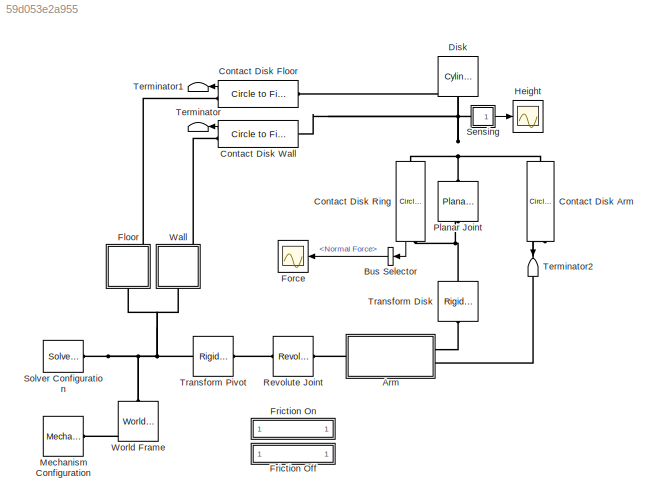
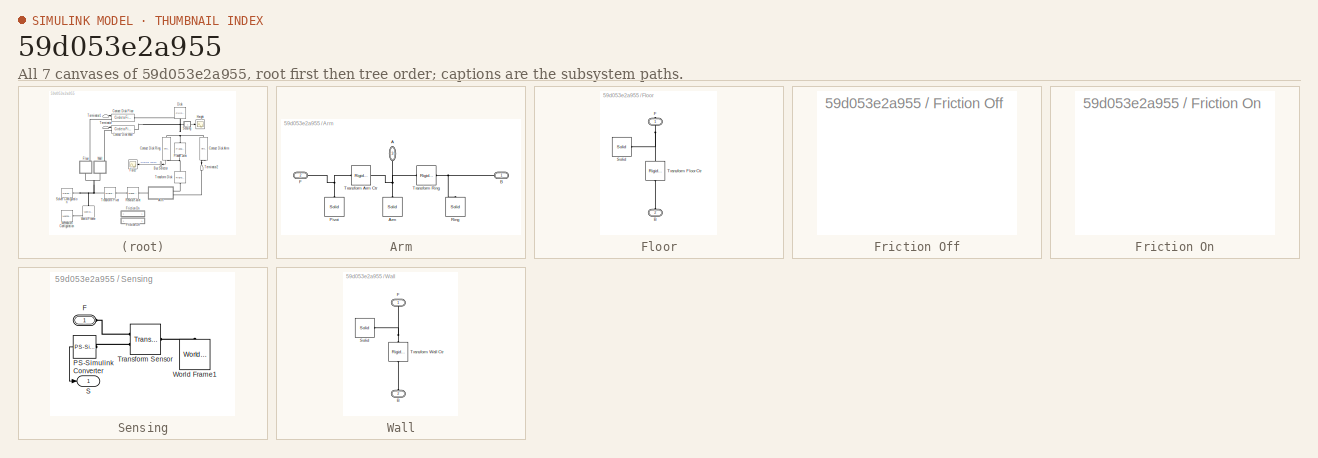
[diagram: thumbnail index - all 7 canvases of the model, root first then tree order]
MODEL slx_59d053e2a955
KIND model
CONFIG PostLoadFcn = warning off Simulink:Engine:UsingDefaultMaxStepSize\n
CONFIG StartFcn = tic;
CONFIG StopFcn = Elapsed_Sim_Time = toc;\ndisp(['Elapsed Sim Time = ' num2str(Elapsed_Sim_Time)]);\n
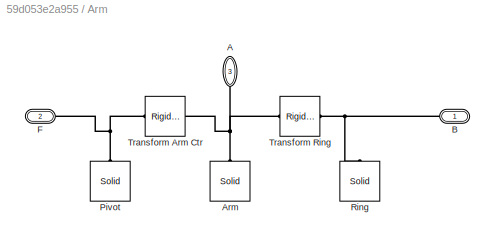
BLOCK [SubSystem] Arm
  Ports = [0, 0, 0, 0, 0, 1, 2]
  RequestExecContextInheritance = off
BLOCK [PMIOPort] Arm/A
  Port = 3
  Side = Right
BLOCK [Reference] Arm/Arm  REF=sm_lib/Body Elements/Solid
  BlockFunction = simmechanics.library.body_elements.solid
  BrickDimensionUnits = m
  BrickDimensions = [0.02 0.52 0.05]
  CenterOfMass = [0 0 0]
  CenterOfMassUnits = m
  ClassName = Solid
  CylinderLength = 1
  CylinderLengthUnits = m
  CylinderRadius = 1
  CylinderRadiusUnits = m
  Density = 1000
  DensityBased = on
  DensityUnits = kg/(m^3)
  EllipsoidRadii = [1 1 1]
  EllipsoidRadiiUnits = m
  ExtGeomFileType = STL
  ExtGeomFileUnits = m
  ExtrusionCrossSection = [1 1; -1 1; -1 -1; 1 -1]
  ExtrusionCrossSectionUnits = m
  ExtrusionLength = 1
  ExtrusionLengthUnits = m
  GeometryShape = Brick
  GraphicAmbientColor = [0.15 0.15 0.15 1.0]
  GraphicDiffuseColor = [0.0 0.4 0.8]
  GraphicEmissiveColor = [0.0 0.0 0.0 1.0]
  GraphicOpacity = 1.0
  GraphicShininess = 75
  GraphicSpecularColor = [0.5 0.5 0.5 1.0]
  GraphicType = FromGeometry
  GraphicVisPropType = SimpleVisualProperties
  InertiaType = CalculateFromGeometry
  LogSimulationData = off
  MarkerShape = Sphere
  MarkerSize = 10
  MarkerSizeUnits = m
  Mass = 1
  MassUnits = kg
  MomentsOfInertia = [1 1 1]
  MomentsOfInertiaUnits = kg*m^2
  PolygonNumSides = 3
  PolygonOuterRadius = 1
  PolygonOuterRadiusUnits = m
  Ports = [0, 0, 0, 0, 0, 0, 1]
  ProductsOfInertia = [0 0 0]
  ProductsOfInertiaUnits = kg*m^2
  RectangleSize = [1 1]
  RectangleSizeUnits = m
  RevolutionAngle = 180
  RevolutionAngleUnits = deg
  RevolutionCrossSection = [1 1; 1 -1; 2 -1; 2 1]
  RevolutionCrossSectionUnits = m
  RevolutionExtent = Full
  SourceBlock = sm_lib/Body Elements/Solid
  SourceType = Solid
  SphereRadius = 1
  SphereRadiusUnits = m
BLOCK [PMIOPort] Arm/B
  Port = 1
  Side = Right
BLOCK [PMIOPort] Arm/F
  Port = 2
  Side = Left
BLOCK [Reference] Arm/Pivot  REF=sm_lib/Body Elements/Solid
  BlockFunction = simmechanics.library.body_elements.solid
  BrickDimensionUnits = m
  BrickDimensions = [0.02 0.51 0.05]
  CenterOfMass = [0 0 0]
  CenterOfMassUnits = m
  ClassName = Solid
  CylinderLength = 0.08
  CylinderLengthUnits = m
  CylinderRadius = 0.02
  CylinderRadiusUnits = m
  Density = 1000
  DensityBased = on
  DensityUnits = kg/(m^3)
  EllipsoidRadii = [1 1 1]
  EllipsoidRadiiUnits = m
  ExtGeomFileType = STL
  ExtGeomFileUnits = m
  ExtrusionCrossSection = [1 1; -1 1; -1 -1; 1 -1]
  ExtrusionCrossSectionUnits = m
  ExtrusionLength = 1
  ExtrusionLengthUnits = m
  GeometryShape = Cylinder
  GraphicAmbientColor = [0.15 0.15 0.15 1.0]
  GraphicDiffuseColor = [0.2 0.2 0.2]
  GraphicEmissiveColor = [0.0 0.0 0.0 1.0]
  GraphicOpacity = 1.0
  GraphicShininess = 75
  GraphicSpecularColor = [0.5 0.5 0.5 1.0]
  GraphicType = FromGeometry
  GraphicVisPropType = SimpleVisualProperties
  InertiaType = CalculateFromGeometry
  LogSimulationData = off
  MarkerShape = Sphere
  MarkerSize = 10
  MarkerSizeUnits = m
  Mass = 1
  MassUnits = kg
  MomentsOfInertia = [1 1 1]
  MomentsOfInertiaUnits = kg*m^2
  PolygonNumSides = 3
  PolygonOuterRadius = 1
  PolygonOuterRadiusUnits = m
  Ports = [0, 0, 0, 0, 0, 0, 1]
  ProductsOfInertia = [0 0 0]
  ProductsOfInertiaUnits = kg*m^2
  RectangleSize = [1 1]
  RectangleSizeUnits = m
  RevolutionAngle = 180
  RevolutionAngleUnits = deg
  RevolutionCrossSection = [1 1; 1 -1; 2 -1; 2 1]
  RevolutionCrossSectionUnits = m
  RevolutionExtent = Full
  SourceBlock = sm_lib/Body Elements/Solid
  SourceType = Solid
  SphereRadius = 1
  SphereRadiusUnits = m
BLOCK [Reference] Arm/Ring  REF=sm_lib/Body Elements/Solid
  BlockFunction = simmechanics.library.body_elements.solid
  BrickDimensionUnits = m
  BrickDimensions = [0.5 0.2 0.05]
  CenterOfMass = [0 0 0]
  CenterOfMassUnits = m
  ClassName = Solid
  CylinderLength = 1
  CylinderLengthUnits = m
  CylinderRadius = 1
  CylinderRadiusUnits = m
  Density = 1000
  DensityBased = on
  DensityUnits = kg/(m^3)
  EllipsoidRadii = [1 1 1]
  EllipsoidRadiiUnits = m
  ExtGeomFileType = STL
  ExtGeomFileUnits = m
  ExtrusionCrossSection = Extr_Data_Ring(0.08,0.06,90,270)
  ExtrusionCrossSectionUnits = m
  ExtrusionLength = 0.05
  ExtrusionLengthUnits = m
  GeometryShape = GeneralExtrusion
  GraphicAmbientColor = [0.15 0.15 0.15 1.0]
  GraphicDiffuseColor = [0.0 0.4 0.8]
  GraphicEmissiveColor = [0.0 0.0 0.0 1.0]
  GraphicOpacity = 1.0
  GraphicShininess = 75
  GraphicSpecularColor = [0.5 0.5 0.5 1.0]
  GraphicType = FromGeometry
  GraphicVisPropType = SimpleVisualProperties
  InertiaType = CalculateFromGeometry
  LogSimulationData = off
  MarkerShape = Sphere
  MarkerSize = 10
  MarkerSizeUnits = m
  Mass = 1
  MassUnits = kg
  MomentsOfInertia = [1 1 1]
  MomentsOfInertiaUnits = kg*m^2
  PolygonNumSides = 3
  PolygonOuterRadius = 1
  PolygonOuterRadiusUnits = m
  Ports = [0, 0, 0, 0, 0, 0, 1]
  ProductsOfInertia = [0 0 0]
  ProductsOfInertiaUnits = kg*m^2
  RectangleSize = [1 1]
  RectangleSizeUnits = m
  RevolutionAngle = 180
  RevolutionAngleUnits = deg
  RevolutionCrossSection = [1 1; 1 -1; 2 -1; 2 1]
  RevolutionCrossSectionUnits = m
  RevolutionExtent = Full
  SourceBlock = sm_lib/Body Elements/Solid
  SourceType = Solid
  SphereRadius = 1
  SphereRadiusUnits = m
BLOCK [Reference] Arm/Transform Arm Ctr  REF=sm_lib/Frames and
Transforms/Rigid
Transform
  BaseAlignAxisA = +Z
  BaseAlignAxisB = +X
  BlockFunction = simmechanics.library.frames_transforms.rigid_transform
  ClassName = RigidTransform
  FollAlignAxisA = +X
  FollAlignAxisB = +Y
  LogSimulationData = off
  Ports = [0, 0, 0, 0, 0, 1, 1]
  RotationAngle = 90
  RotationAngleUnits = deg
  RotationArbitraryAxis = [0 0 1]
  RotationMatrix = [1 0 0; 0 1 0; 0 0 1]
  RotationMethod = None
  RotationStandardAxis = -Y
  SourceBlock = sm_lib/Frames and\nTransforms/Rigid\nTransform
  SourceType = Rigid\nTransform
  TranslationCartesianOffset = [0 0 0]
  TranslationLengthUnit = m
  TranslationMethod = StandardAxis
  TranslationROffset = 0
  TranslationROffsetUnits = m
  TranslationStandardAxis = -Y
  TranslationStandardOffset = 0.25
  TranslationThetaOffset = 0
  TranslationThetaOffsetUnits = deg
  TranslationZOffset = 0
  TranslationZOffsetUnits = m
BLOCK [Reference] Arm/Transform Ring  REF=sm_lib/Frames and
Transforms/Rigid
Transform
  BaseAlignAxisA = +Z
  BaseAlignAxisB = +X
  BlockFunction = simmechanics.library.frames_transforms.rigid_transform
  ClassName = RigidTransform
  FollAlignAxisA = +X
  FollAlignAxisB = +Y
  LogSimulationData = off
  Ports = [0, 0, 0, 0, 0, 1, 1]
  RotationAngle = 90
  RotationAngleUnits = deg
  RotationArbitraryAxis = [0 0 1]
  RotationMatrix = [1 0 0; 0 1 0; 0 0 1]
  RotationMethod = None
  RotationStandardAxis = -Y
  SourceBlock = sm_lib/Frames and\nTransforms/Rigid\nTransform
  SourceType = Rigid\nTransform
  TranslationCartesianOffset = [-0.01 -0.085-0.25 0]
  TranslationLengthUnit = m
  TranslationMethod = Cartesian
  TranslationROffset = 0
  TranslationROffsetUnits = m
  TranslationStandardAxis = -Y
  TranslationStandardOffset = 0
  TranslationThetaOffset = 0
  TranslationThetaOffsetUnits = deg
  TranslationZOffset = 0
  TranslationZOffsetUnits = m
BLOCK [BusSelector] Bus Selector
  OutputSignals = Normal Force
  Ports = [1, 1]
BLOCK [Reference] Contact Disk Arm  REF=Contact_Forces_Lib/2D/Circle to Finite Line Force
  Ports = [0, 1, 0, 0, 0, 1, 1]
  SourceBlock = Contact_Forces_Lib/2D/Circle to Finite Line Force
  SourceType = Circle on Finite Line Force
  b_contact = 1e2
  circle_rad = 0.05
  custom_param_1 = 1
  custom_param_2 = 1
  force_law = Linear
  friction_law = Stick-Slip Continuous
  k_contact = 1e4
  line_depth = 0.01
  line_length = 0.52
  mu_kinetic = 0.5
  mu_static = 0.7
  pen_exponent = 1
  pen_full_damp_F = 1e-4
  v_thr = 0.001
BLOCK [Reference] Contact Disk Floor  REF=Contact_Forces_Lib/2D/Circle to Finite Line Force
  Ports = [0, 1, 0, 0, 0, 1, 1]
  SourceBlock = Contact_Forces_Lib/2D/Circle to Finite Line Force
  SourceType = Circle on Finite Line Force
  b_contact = 1.5e2
  circle_rad = 0.05
  custom_param_1 = 1
  custom_param_2 = 1
  force_law = Linear
  friction_law = Stick-Slip Continuous
  k_contact = 1e4
  line_depth = 0.01
  line_length = 1.5
  mu_kinetic = 0.5
  mu_static = 0.7
  pen_exponent = 1
  pen_full_damp_F = 1e-4
  v_thr = 0.001
BLOCK [Reference] Contact Disk Ring  REF=Contact_Forces_Lib/2D/Circle to Ring Force
  Ports = [0, 1, 0, 0, 0, 1, 1]
  SourceBlock = Contact_Forces_Lib/2D/Circle to Ring Force
  SourceType = Circle to Ring Force
  active_angle = [-120 120]
  b_contact = 1e2
  custom_param_1 = 1
  custom_param_2 = 1
  d_ring = 0.02
  force_law = Linear
  friction_law = Stick-Slip Continuous
  k_contact = 1e4
  mu_kinetic = 0.1
  mu_static = 0.2
  pen_exponent = 1
  pen_full_damp_F = 1e-4
  radius_circle = 0.05
  radius_ring = 0.07
  v_thr = 0.001
BLOCK [Reference] Contact Disk Wall  REF=Contact_Forces_Lib/2D/Circle to Finite Line Force
  Ports = [0, 1, 0, 0, 0, 1, 1]
  SourceBlock = Contact_Forces_Lib/2D/Circle to Finite Line Force
  SourceType = Circle on Finite Line Force
  b_contact = 1.5e2
  circle_rad = 0.05
  custom_param_1 = 1
  custom_param_2 = 1
  force_law = Linear
  friction_law = Stick-Slip Continuous
  k_contact = 1e4
  line_depth = 0.01
  line_length = 1
  mu_kinetic = 0.5
  mu_static = 0.7
  pen_exponent = 1
  pen_full_damp_F = 1e-4
  v_thr = 0.001
BLOCK [Reference] Disk  REF=Parts_Lib/Cylinder
  Ports = [0, 0, 0, 0, 0, 1]
  SourceBlock = Parts_Lib/Cylinder
  SourceType = Solid Cylinder with Markings
  cyl_color = red
  cyl_density = 1000
  cyl_length = 0.05
  cyl_opacity = 1
  cyl_radius = 0.05
  mark_angle = 60
  mark_color = black
  mark_opacity = 1
  mark_radius = [0.75 0.5]
BLOCK [SubSystem] Floor
  Ports = [0, 0, 0, 0, 0, 1, 1]
  RequestExecContextInheritance = off
BLOCK [PMIOPort] Floor/B
  Port = 2
  Side = Left
BLOCK [PMIOPort] Floor/F
  Port = 1
  Side = Right
BLOCK [Reference] Floor/Solid  REF=sm_lib/Body Elements/Solid
  BlockFunction = simmechanics.library.body_elements.solid
  BrickDimensionUnits = m
  BrickDimensions = [0.02 1.5 0.05]
  CenterOfMass = [0 0 0]
  CenterOfMassUnits = m
  ClassName = Solid
  CylinderLength = 1
  CylinderLengthUnits = m
  CylinderRadius = 1
  CylinderRadiusUnits = m
  Density = 1000
  DensityBased = on
  DensityUnits = kg/(m^3)
  EllipsoidRadii = [1 1 1]
  EllipsoidRadiiUnits = m
  ExtGeomFileType = STL
  ExtGeomFileUnits = m
  ExtrusionCrossSection = [1 1; -1 1; -1 -1; 1 -1]
  ExtrusionCrossSectionUnits = m
  ExtrusionLength = 1
  ExtrusionLengthUnits = m
  GeometryShape = Brick
  GraphicAmbientColor = [0.15 0.15 0.15 1.0]
  GraphicDiffuseColor = [0.5 0.5 0.5]
  GraphicEmissiveColor = [0.0 0.0 0.0 1.0]
  GraphicOpacity = 1.0
  GraphicShininess = 75
  GraphicSpecularColor = [0.5 0.5 0.5 1.0]
  GraphicType = FromGeometry
  GraphicVisPropType = SimpleVisualProperties
  InertiaType = CalculateFromGeometry
  LogSimulationData = off
  MarkerShape = Sphere
  MarkerSize = 10
  MarkerSizeUnits = m
  Mass = 1
  MassUnits = kg
  MomentsOfInertia = [1 1 1]
  MomentsOfInertiaUnits = kg*m^2
  PolygonNumSides = 3
  PolygonOuterRadius = 1
  PolygonOuterRadiusUnits = m
  Ports = [0, 0, 0, 0, 0, 0, 1]
  ProductsOfInertia = [0 0 0]
  ProductsOfInertiaUnits = kg*m^2
  RectangleSize = [1 1]
  RectangleSizeUnits = m
  RevolutionAngle = 180
  RevolutionAngleUnits = deg
  RevolutionCrossSection = [1 1; 1 -1; 2 -1; 2 1]
  RevolutionCrossSectionUnits = m
  RevolutionExtent = Full
  SourceBlock = sm_lib/Body Elements/Solid
  SourceType = Solid
  SphereRadius = 1
  SphereRadiusUnits = m
BLOCK [Reference] Floor/Transform Floor Ctr  REF=sm_lib/Frames and
Transforms/Rigid
Transform
  BaseAlignAxisA = +Z
  BaseAlignAxisB = -Y
  BlockFunction = simmechanics.library.frames_transforms.rigid_transform
  ClassName = RigidTransform
  FollAlignAxisA = +X
  FollAlignAxisB = +Z
  LogSimulationData = off
  Ports = [0, 0, 0, 0, 0, 1, 1]
  RotationAngle = 0
  RotationAngleUnits = deg
  RotationArbitraryAxis = [0 0 1]
  RotationMatrix = [1 0 0; 0 1 0; 0 0 1]
  RotationMethod = AlignedAxes
  RotationStandardAxis = +Z
  SourceBlock = sm_lib/Frames and\nTransforms/Rigid\nTransform
  SourceType = Rigid\nTransform
  TranslationCartesianOffset = [0.25 0 -0.15]
  TranslationLengthUnit = m
  TranslationMethod = Cartesian
  TranslationROffset = 0
  TranslationROffsetUnits = m
  TranslationStandardAxis = +Z
  TranslationStandardOffset = 0
  TranslationThetaOffset = 0
  TranslationThetaOffsetUnits = deg
  TranslationZOffset = 0
  TranslationZOffsetUnits = m
BLOCK [Scope] Force
  DataFormat = StructureWithTime
  Floating = off
  LimitDataPoints = off
  NumInputPorts = 1
  Ports = [1]
  SaveName = ScopeData1
  ShowLegends = off
  YMax = 400
  YMin = -400
BLOCK [SubSystem] Friction Off
  OpenFcn = CR_bpth=find_system(bdroot,'RegExp','on','LookUnderMasks','on','friction_law','.*');\n\nif(~isempty(CR_bpth))\n    for i=1:length(CR_bpth)\n        set_param(char(CR_bpth(i)),'friction_law','None');\n    end\nend
  Ports = []
  RequestExecContextInheritance = off
BLOCK [SubSystem] Friction On
  OpenFcn = CR_bpth=find_system(bdroot,'RegExp','on','LookUnderMasks','on','friction_law','.*');\n\nif(~isempty(CR_bpth))\n    for i=1:length(CR_bpth)\n        set_param(char(CR_bpth(i)),'friction_law','Stick-Slip Continuous');\n    end\nend
  Ports = []
  RequestExecContextInheritance = off
BLOCK [Scope] Height
  DataFormat = StructureWithTime
  Floating = off
  LimitDataPoints = off
  NumInputPorts = 1
  Ports = [1]
  ShowLegends = off
  YMax = 1
  YMin = -1
BLOCK [Reference] Mechanism Configuration  REF=sm_lib/Utilities/Mechanism
Configuration
  BlockFunction = simmechanics.library.utilities.mechanism_configuration
  ClassName = MechanismConfiguration
  GravityUnits = m/s^2
  GravityVector = [0 0 -9.81]
  LinearizationDelta = 0.001
  LogSimulationData = off
  Ports = [0, 0, 0, 0, 0, 0, 1]
  SourceBlock = sm_lib/Utilities/Mechanism\nConfiguration
  SourceType = Mechanism\nConfiguration
  UniformGravity = Constant
BLOCK [Reference] Planar Joint  REF=sm_lib/Joints/Planar Joint
  BlockFunction = simmechanics.library.joints.planar_joint
  ClassName = PlanarJoint
  CompositeWrenchDir = FollowerOnBase
  CompositeWrenchFrame = BaseFrame
  LogSimulationData = off
  Ports = [0, 0, 0, 0, 0, 1, 1]
  PxDampingCoefficient = 0
  PxDampingCoefficientUnits = N/(m/s)
  PxEquilibriumPosition = 0
  PxEquilibriumPositionUnits = m
  PxMotionActuationMode = ComputedMotion
  PxPositionTargetPriority = High
  PxPositionTargetSpecify = on
  PxPositionTargetValue = 0.005
  PxPositionTargetValueUnits = m
  PxSenseAcceleration = off
  PxSensePosition = off
  PxSenseTorqueForce = off
  PxSenseVelocity = off
  PxSpringStiffness = 0
  PxSpringStiffnessUnits = N/m
  PxTorqueActuationMode = NoTorque
  PxVelocityTargetPriority = High
  PxVelocityTargetSpecify = off
  PxVelocityTargetValue = 0
  PxVelocityTargetValueUnits = m/s
  PyDampingCoefficient = 0
  PyDampingCoefficientUnits = N/(m/s)
  PyEquilibriumPosition = 0
  PyEquilibriumPositionUnits = m
  PyMotionActuationMode = ComputedMotion
  PyPositionTargetPriority = High
  PyPositionTargetSpecify = off
  PyPositionTargetValue = 0
  PyPositionTargetValueUnits = m
  PySenseAcceleration = off
  PySensePosition = off
  PySenseTorqueForce = off
  PySenseVelocity = off
  PySpringStiffness = 0
  PySpringStiffnessUnits = N/m
  PyTorqueActuationMode = NoTorque
  PyVelocityTargetPriority = High
  PyVelocityTargetSpecify = on
  PyVelocityTargetValue = 0.5
  PyVelocityTargetValueUnits = m/s
  RzDampingCoefficient = 0
  RzDampingCoefficientUnits = N*m/(deg/s)
  RzEquilibriumPosition = 0
  RzEquilibriumPositionUnits = deg
  RzMotionActuationMode = ComputedMotion
  RzPositionTargetPriority = High
  RzPositionTargetSpecify = off
  RzPositionTargetValue = 0
  RzPositionTargetValueUnits = deg
  RzSenseAcceleration = off
  RzSensePosition = off
  RzSenseTorqueForce = off
  RzSenseVelocity = off
  RzSpringStiffness = 0
  RzSpringStiffnessUnits = N*m/deg
  RzTorqueActuationMode = NoTorque
  RzVelocityTargetPriority = High
  RzVelocityTargetSpecify = off
  RzVelocityTargetValue = 0
  RzVelocityTargetValueUnits = deg/s
  SenseConstraintForce = off
  SenseConstraintForceX = off
  SenseConstraintForceY = off
  SenseConstraintForceZ = off
  SenseConstraintTorque = off
  SenseConstraintTorqueX = off
  SenseConstraintTorqueY = off
  SenseConstraintTorqueZ = off
  SenseTotalForce = off
  SenseTotalForceX = off
  SenseTotalForceY = off
  SenseTotalForceZ = off
  SenseTotalTorque = off
  SenseTotalTorqueX = off
  SenseTotalTorqueY = off
  SenseTotalTorqueZ = off
  SourceBlock = sm_lib/Joints/Planar Joint
  SourceType = Planar Joint
BLOCK [Reference] Revolute Joint  REF=sm_lib/Joints/Revolute Joint
  BlockFunction = simmechanics.library.joints.revolute_joint
  ClassName = RevoluteJoint
  CompositeWrenchDir = FollowerOnBase
  CompositeWrenchFrame = BaseFrame
  DampingCoefficient = 0.15
  DampingCoefficientUnits = N*m/(deg/s)
  EquilibriumPosition = -70+20
  EquilibriumPositionUnits = deg
  LogSimulationData = off
  MotionActuationMode = ComputedMotion
  Ports = [0, 0, 0, 0, 0, 1, 1]
  PositionTargetPriority = High
  PositionTargetSpecify = on
  PositionTargetValue = 76
  PositionTargetValueUnits = deg
  SenseAcceleration = off
  SenseConstraintForce = off
  SenseConstraintForceX = off
  SenseConstraintForceY = off
  SenseConstraintForceZ = off
  SenseConstraintTorque = off
  SenseConstraintTorqueX = off
  SenseConstraintTorqueY = off
  SenseConstraintTorqueZ = off
  SensePosition = off
  SenseTorqueForce = off
  SenseTotalForce = off
  SenseTotalForceX = off
  SenseTotalForceY = off
  SenseTotalForceZ = off
  SenseTotalTorque = off
  SenseTotalTorqueX = off
  SenseTotalTorqueY = off
  SenseTotalTorqueZ = off
  SenseVelocity = off
  SourceBlock = sm_lib/Joints/Revolute Joint
  SourceType = Revolute Joint
  SpringStiffness = 1*3
  SpringStiffnessUnits = N*m/deg
  TorqueActuationMode = NoTorque
  VelocityTargetPriority = High
  VelocityTargetSpecify = off
  VelocityTargetValue = 0
  VelocityTargetValueUnits = deg/s
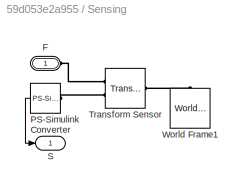
BLOCK [SubSystem] Sensing
  Ports = [0, 1, 0, 0, 0, 1]
  RequestExecContextInheritance = off
BLOCK [PMIOPort] Sensing/F
  Port = 1
  Side = Left
BLOCK [Reference] Sensing/PS-Simulink Converter  REF=nesl_utility/PS-Simulink
Converter
  AffineConversion = off
  Frequencies = []
  LeftPortType = input
  PhysicalDomain = network_engine_domain
  Ports = [0, 1, 0, 0, 0, 1]
  PseudoPeriodic = off
  RightPortType = output
  SourceBlock = nesl_utility/PS-Simulink\nConverter
  SourceType = PS-Simulink\nConverter
  SubClassName = ps_output
  Unit = 1
BLOCK [Outport] Sensing/S
  IconDisplay = Port number
BLOCK [Reference] Sensing/Transform Sensor  REF=sm_lib/Frames and
Transforms/Transform
Sensor
  BlockFunction = simmechanics.library.frames_transforms.transform_sensor
  ClassName = TransformSensor
  LogSimulationData = off
  MeasurementFrame = World
  Ports = [0, 0, 0, 0, 0, 1, 2]
  SenseAlpha1 = off
  SenseAlpha2 = off
  SenseAlpha3 = off
  SenseAlphaX = off
  SenseAlphaY = off
  SenseAlphaZ = off
  SenseAngle = off
  SenseAngle1 = off
  SenseAngle2 = off
  SenseAngle3 = off
  SenseAxis = off
  SenseAzim = off
  SenseAzimDDot = off
  SenseAzimDot = off
  SenseDist = off
  SenseDistDDot = off
  SenseDistDot = off
  SenseInc = off
  SenseIncDDot = off
  SenseIncDot = off
  SenseOmega1 = off
  SenseOmega2 = off
  SenseOmega3 = off
  SenseOmegaX = off
  SenseOmegaY = off
  SenseOmegaZ = off
  SenseQ = off
  SenseQDDot = off
  SenseQDot = off
  SenseR = off
  SenseRDDot = off
  SenseRDot = off
  SenseRad = off
  SenseRadDDot = off
  SenseRadDot = off
  SenseX = off
  SenseXDDot = off
  SenseXDot = off
  SenseY = off
  SenseYDDot = off
  SenseYDot = off
  SenseZ = on
  SenseZDDot = off
  SenseZDot = off
  SourceBlock = sm_lib/Frames and\nTransforms/Transform\nSensor
  SourceType = Transform\nSensor
BLOCK [Reference] Sensing/World Frame1  REF=sm_lib/Frames and
Transforms/World Frame
  BlockFunction = simmechanics.library.frames_transforms.world_frame
  ClassName = WorldFrame
  LogSimulationData = off
  Ports = [0, 0, 0, 0, 0, 0, 1]
  SourceBlock = sm_lib/Frames and\nTransforms/World Frame
  SourceType = World Frame
BLOCK [Reference] Solver Configuration  REF=nesl_utility/Solver
Configuration
  AbsTol = 1e-06
  Accelerate = off
  AutomaticFiltering = on
  DelaysMemoryBudget = 1024
  DoDC = off
  DoFixedCost = off
  EnableSwitchedLinearOptims = on
  FilteringTimeConstant = 0.001
  FrequencyDomain = off
  Harmonics = []
  LeftPortType = input
  LinearAlgebra = Sparse
  LocalSolverChoice = NE_BACKWARD_EULER_ADVANCER
  LocalSolverSampleTime = .001
  MaxModeIter = 2
  MaxNonlinIter = 3
  MinStep = 1e-09
  PhysicalDomain = network_engine_domain
  Ports = [0, 0, 0, 0, 0, 0, 1]
  Profile = off
  RelTol = 0.001
  ResidualTolerance = 1e-9
  RightPortType = generic
  SimulateNoise = off
  SourceBlock = nesl_utility/Solver\nConfiguration
  SourceType = Solver\nConfiguration
  SubClassName = solver
  ToWorkspace = off
  Tones = []
  UseCCode = off
  UseLocalSampling = off
  UseLocalSolver = off
BLOCK [Terminator] Terminator
BLOCK [Terminator] Terminator1
BLOCK [Terminator] Terminator2
BLOCK [Reference] Transform Disk  REF=sm_lib/Frames and
Transforms/Rigid
Transform
  BaseAlignAxisA = +Z
  BaseAlignAxisB = +X
  BlockFunction = simmechanics.library.frames_transforms.rigid_transform
  ClassName = RigidTransform
  FollAlignAxisA = +X
  FollAlignAxisB = +Y
  LogSimulationData = off
  Ports = [0, 0, 0, 0, 0, 1, 1]
  RotationAngle = 180
  RotationAngleUnits = deg
  RotationArbitraryAxis = [0 0 1]
  RotationMatrix = [1 0 0; 0 1 0; 0 0 1]
  RotationMethod = StandardAxis
  RotationStandardAxis = +Z
  SourceBlock = sm_lib/Frames and\nTransforms/Rigid\nTransform
  SourceType = Rigid\nTransform
  TranslationCartesianOffset = [0 0 0]
  TranslationLengthUnit = m
  TranslationMethod = StandardAxis
  TranslationROffset = 0
  TranslationROffsetUnits = m
  TranslationStandardAxis = +Z
  TranslationStandardOffset = 0
  TranslationThetaOffset = 0
  TranslationThetaOffsetUnits = deg
  TranslationZOffset = 0
  TranslationZOffsetUnits = m
BLOCK [Reference] Transform Pivot  REF=sm_lib/Frames and
Transforms/Rigid
Transform
  BaseAlignAxisA = +Z
  BaseAlignAxisB = +X
  BlockFunction = simmechanics.library.frames_transforms.rigid_transform
  ClassName = RigidTransform
  FollAlignAxisA = +X
  FollAlignAxisB = +Y
  LogSimulationData = off
  Ports = [0, 0, 0, 0, 0, 1, 1]
  RotationAngle = 90
  RotationAngleUnits = deg
  RotationArbitraryAxis = [0 0 1]
  RotationMatrix = [1 0 0; 0 1 0; 0 0 1]
  RotationMethod = StandardAxis
  RotationStandardAxis = +X
  SourceBlock = sm_lib/Frames and\nTransforms/Rigid\nTransform
  SourceType = Rigid\nTransform
  TranslationCartesianOffset = [0 0 0]
  TranslationLengthUnit = m
  TranslationMethod = None
  TranslationROffset = 0
  TranslationROffsetUnits = m
  TranslationStandardAxis = +Z
  TranslationStandardOffset = 0
  TranslationThetaOffset = 0
  TranslationThetaOffsetUnits = deg
  TranslationZOffset = 0
  TranslationZOffsetUnits = m
BLOCK [SubSystem] Wall
  Ports = [0, 0, 0, 0, 0, 1, 1]
  RequestExecContextInheritance = off
BLOCK [PMIOPort] Wall/B
  Port = 2
  Side = Left
BLOCK [PMIOPort] Wall/F
  Port = 1
  Side = Right
BLOCK [Reference] Wall/Solid  REF=sm_lib/Body Elements/Solid
  BlockFunction = simmechanics.library.body_elements.solid
  BrickDimensionUnits = m
  BrickDimensions = [0.02 1 0.05]
  CenterOfMass = [0 0 0]
  CenterOfMassUnits = m
  ClassName = Solid
  CylinderLength = 1
  CylinderLengthUnits = m
  CylinderRadius = 1
  CylinderRadiusUnits = m
  Density = 1000
  DensityBased = on
  DensityUnits = kg/(m^3)
  EllipsoidRadii = [1 1 1]
  EllipsoidRadiiUnits = m
  ExtGeomFileType = STL
  ExtGeomFileUnits = m
  ExtrusionCrossSection = [1 1; -1 1; -1 -1; 1 -1]
  ExtrusionCrossSectionUnits = m
  ExtrusionLength = 1
  ExtrusionLengthUnits = m
  GeometryShape = Brick
  GraphicAmbientColor = [0.15 0.15 0.15 1.0]
  GraphicDiffuseColor = [0.5 0.5 0.5]
  GraphicEmissiveColor = [0.0 0.0 0.0 1.0]
  GraphicOpacity = 1.0
  GraphicShininess = 75
  GraphicSpecularColor = [0.5 0.5 0.5 1.0]
  GraphicType = FromGeometry
  GraphicVisPropType = SimpleVisualProperties
  InertiaType = CalculateFromGeometry
  LogSimulationData = off
  MarkerShape = Sphere
  MarkerSize = 10
  MarkerSizeUnits = m
  Mass = 1
  MassUnits = kg
  MomentsOfInertia = [1 1 1]
  MomentsOfInertiaUnits = kg*m^2
  PolygonNumSides = 3
  PolygonOuterRadius = 1
  PolygonOuterRadiusUnits = m
  Ports = [0, 0, 0, 0, 0, 0, 1]
  ProductsOfInertia = [0 0 0]
  ProductsOfInertiaUnits = kg*m^2
  RectangleSize = [1 1]
  RectangleSizeUnits = m
  RevolutionAngle = 180
  RevolutionAngleUnits = deg
  RevolutionCrossSection = [1 1; 1 -1; 2 -1; 2 1]
  RevolutionCrossSectionUnits = m
  RevolutionExtent = Full
  SourceBlock = sm_lib/Body Elements/Solid
  SourceType = Solid
  SphereRadius = 1
  SphereRadiusUnits = m
BLOCK [Reference] Wall/Transform Wall Ctr  REF=sm_lib/Frames and
Transforms/Rigid
Transform
  BaseAlignAxisA = -X
  BaseAlignAxisB = -Y
  BlockFunction = simmechanics.library.frames_transforms.rigid_transform
  ClassName = RigidTransform
  FollAlignAxisA = +X
  FollAlignAxisB = +Z
  LogSimulationData = off
  Ports = [0, 0, 0, 0, 0, 1, 1]
  RotationAngle = 0
  RotationAngleUnits = deg
  RotationArbitraryAxis = [0 0 1]
  RotationMatrix = [1 0 0; 0 1 0; 0 0 1]
  RotationMethod = AlignedAxes
  RotationStandardAxis = +Z
  SourceBlock = sm_lib/Frames and\nTransforms/Rigid\nTransform
  SourceType = Rigid\nTransform
  TranslationCartesianOffset = [1 0 0.5-0.15]
  TranslationLengthUnit = m
  TranslationMethod = Cartesian
  TranslationROffset = 0
  TranslationROffsetUnits = m
  TranslationStandardAxis = +Z
  TranslationStandardOffset = 0
  TranslationThetaOffset = 0
  TranslationThetaOffsetUnits = deg
  TranslationZOffset = 0
  TranslationZOffsetUnits = m
BLOCK [Reference] World Frame  REF=sm_lib/Frames and
Transforms/World Frame
  BlockFunction = simmechanics.library.frames_transforms.world_frame
  ClassName = WorldFrame
  LogSimulationData = off
  Ports = [0, 0, 0, 0, 0, 0, 1]
  SourceBlock = sm_lib/Frames and\nTransforms/World Frame
  SourceType = World Frame
LINE Bus Selector:1 -> Force:1
LINE Contact Disk Arm:1 -> Terminator2:1
LINE Contact Disk Floor:1 -> Terminator1:1
LINE Contact Disk Ring:1 -> Bus Selector:1
LINE Contact Disk Wall:1 -> Terminator:1
LINE Sensing/PS-Simulink Converter:1 -> Sensing/S:1
LINE Sensing:1 -> Height:1
PNET net1: Arm/A:RConn1 -- Arm/Arm:RConn1 -- Arm/Transform Arm Ctr:LConn1 -- Arm/Transform Ring:RConn1
PNET net2: Arm/B:RConn1 -- Arm/Ring:RConn1 -- Arm/Transform Ring:LConn1
PNET net3: Arm/F:RConn1 -- Arm/Pivot:RConn1 -- Arm/Transform Arm Ctr:RConn1
PLINE Arm:LConn1 -- Revolute Joint:RConn1
PLINE Arm:RConn1 -- Transform Disk:LConn1
PLINE Arm:RConn2 -- Contact Disk Arm:RConn1
PNET net4: Contact Disk Arm:LConn1 -- Contact Disk Floor:LConn1 -- Contact Disk Ring:LConn1 -- Contact Disk Wall:LConn1 -- Disk:LConn1 -- Planar Joint:RConn1 -- Sensing:LConn1
PLINE Contact Disk Floor:RConn1 -- Floor:RConn1
PNET net5: Contact Disk Ring:RConn1 -- Planar Joint:LConn1 -- Transform Disk:RConn1
PLINE Contact Disk Wall:RConn1 -- Wall:RConn1
PLINE Floor/B:RConn1 -- Floor/Transform Floor Ctr:LConn1
PNET net6: Floor/F:RConn1 -- Floor/Solid:RConn1 -- Floor/Transform Floor Ctr:RConn1
PNET net7: Floor:LConn1 -- Mechanism Configuration:RConn1 -- Solver Configuration:RConn1 -- Transform Pivot:LConn1 -- Wall:LConn1 -- World Frame:RConn1
PLINE Revolute Joint:LConn1 -- Transform Pivot:RConn1
PLINE Sensing/F:RConn1 -- Sensing/Transform Sensor:RConn1
PLINE Sensing/PS-Simulink Converter:LConn1 -- Sensing/Transform Sensor:RConn2
PLINE Sensing/Transform Sensor:LConn1 -- Sensing/World Frame1:RConn1
PLINE Wall/B:RConn1 -- Wall/Transform Wall Ctr:LConn1
PNET net8: Wall/F:RConn1 -- Wall/Solid:RConn1 -- Wall/Transform Wall Ctr:RConn1
note: PNET lines group multi-terminal physical nets as a canonical sorted terminal list (undirected conserving connections); 2-terminal nets keep the pairwise PLINE form
